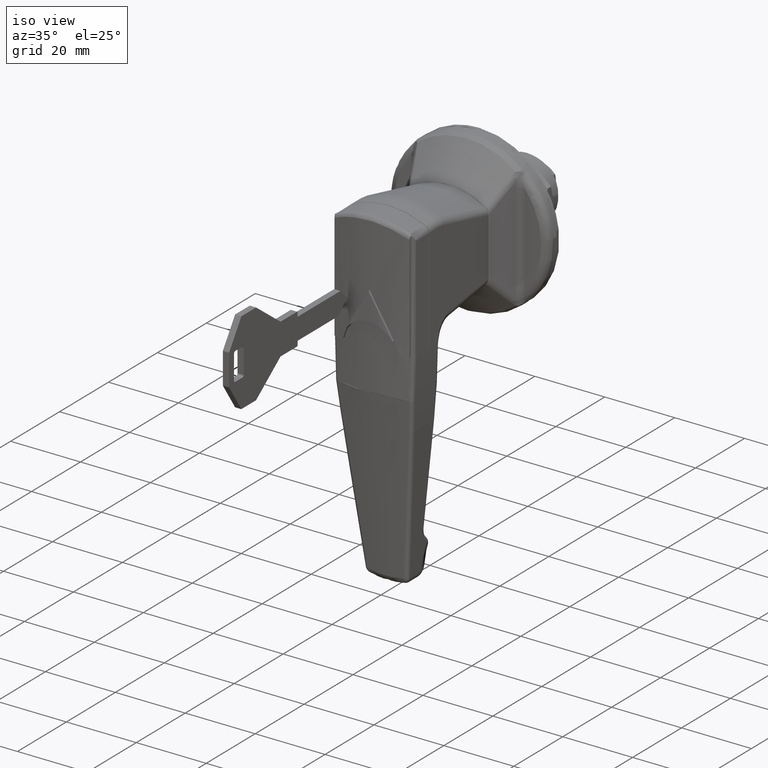
[diagram: clean part render]
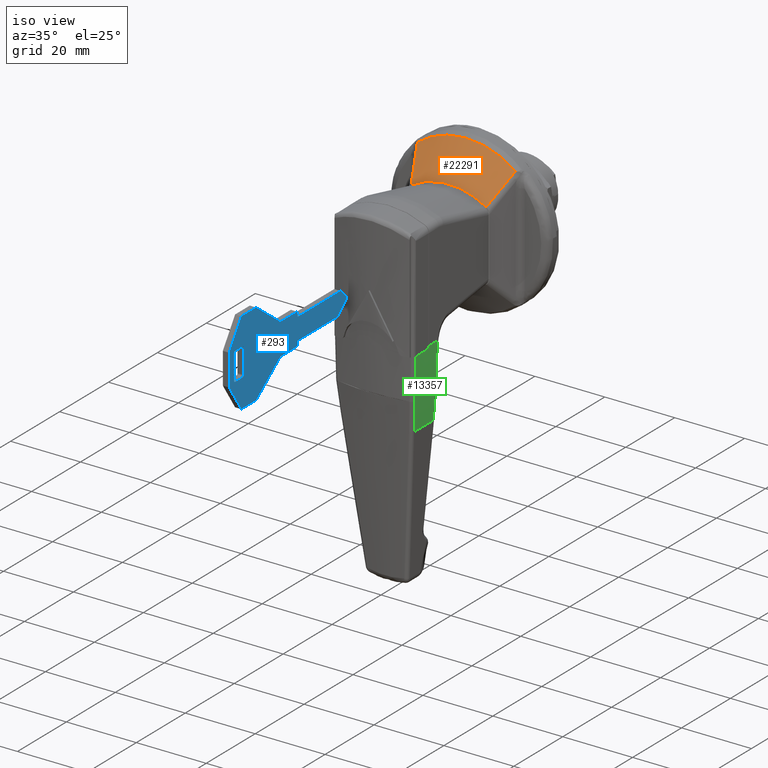
[diagram: same view with three faces highlighted in distinct colors, each labeled with its STEP entity id]
A machine part, iso view with three faces highlighted in distinct colors.
Their STEP definitions:

[orange] entity #22291 — the highlighted face is a freeform B-spline surface patch.
#18486=CARTESIAN_POINT('',(-12.321433036247999,10.742000831447980,10.038640938515201));
#18487=VERTEX_POINT('',#18486);
#18748=CARTESIAN_POINT('',(-12.321433036248020,-10.742000831447980,10.038640938515160));
#18749=VERTEX_POINT('',#18748);
#18763=CARTESIAN_POINT('',(-12.321433036247999,10.742000831447999,10.038640938515201));
#18764=CARTESIAN_POINT('',(-12.325116014844641,9.935737711563332,10.544611168174891));
#18765=CARTESIAN_POINT('',(-12.328138148213700,9.103042534133339,10.986867060443890));
#18766=CARTESIAN_POINT('',(-12.333186291889580,7.388131442044818,11.752007768801070));
#18767=CARTESIAN_POINT('',(-12.335207689114609,6.505903244868991,12.074863006352560));
#18768=CARTESIAN_POINT('',(-12.337181424192149,5.371807727873878,12.402957292845640));
#18769=CARTESIAN_POINT('',(-12.337548714730630,5.143413710822889,12.464779750336850));
#18770=CARTESIAN_POINT('',(-12.338231097689251,4.683428351248114,12.580717345870539));
#18771=CARTESIAN_POINT('',(-12.338546632021320,4.451429704269319,12.634910192029890));
#18772=CARTESIAN_POINT('',(-12.339412137278551,3.755455877847617,12.784697056970529));
#18773=CARTESIAN_POINT('',(-12.339883325638439,3.290490825030909,12.867836478127710));
#18774=CARTESIAN_POINT('',(-12.341009530580170,1.892695517705400,13.067904966317080));
#18775=CARTESIAN_POINT('',(-12.341382520495360,0.956982656407495,13.135782738804011));
#18776=CARTESIAN_POINT('',(-12.341389452105140,-0.452496984345249,13.137026997728700));
#18777=CARTESIAN_POINT('',(-12.341298207228110,-0.923313518672048,13.120595811653491));
#18778=CARTESIAN_POINT('',(-12.341020059827899,-1.631029268429679,13.070578587175330));
#18779=CARTESIAN_POINT('',(-12.340903712084121,-1.867183283699320,13.049673109790421));
#18780=CARTESIAN_POINT('',(-12.340692816374739,-2.221790779635927,13.011908714000350));
#18781=CARTESIAN_POINT('',(-12.340616438208270,-2.340048293248194,12.998250611748910));
#18782=CARTESIAN_POINT('',(-12.340452043915390,-2.575746027377839,12.968914207087460));
#18783=CARTESIAN_POINT('',(-12.340363961057900,-2.693304797770000,12.953223943369791));
#18784=CARTESIAN_POINT('',(-12.339517986569410,-3.748750219985067,12.802909412063780));
#18785=CARTESIAN_POINT('',(-12.338395261438340,-4.668669774468554,12.604983915555270));
#18786=CARTESIAN_POINT('',(-12.335273754785410,-6.473446323160069,12.085602395992771));
#18787=CARTESIAN_POINT('',(-12.333264567743960,-7.358304153809424,11.764149384066410));
#18788=CARTESIAN_POINT('',(-12.330087338123590,-8.441642299604650,11.282238012910099));
#18789=CARTESIAN_POINT('',(-12.329417418218990,-8.657403474254357,11.181706606538199));
#18790=CARTESIAN_POINT('',(-12.328010816086421,-9.085057266007770,10.973173764489070));
#18791=CARTESIAN_POINT('',(-12.327274091843030,-9.296999302346393,10.865162632863390));
#18792=CARTESIAN_POINT('',(-12.324957489378249,-9.927135884050864,10.529825710193760));
#18793=CARTESIAN_POINT('',(-12.323274405706840,-10.338895506288710,10.291609589713090));
#18794=CARTESIAN_POINT('',(-12.321433036248020,-10.742000831447980,10.038640938515160));
#18795=B_SPLINE_CURVE_WITH_KNOTS('',3,(#18763,#18764,#18765,#18766,#18767,#18768,#18769,#18770,#18771,#18772,#18773,#18774,#18775,#18776,#18777,#18778,#18779,#18780,#18781,#18782,#18783,#18784,#18785,#18786,#18787,#18788,#18789,#18790,#18791,#18792,#18793,#18794),.UNSPECIFIED.,.F.,.U.,(4,2,2,2,2,2,2,2,2,2,2,2,2,2,2,4),(0.0,0.125000000000000,0.250000000000001,0.281250000000001,0.312500000000001,0.375000000000001,0.500000000000001,0.562500000000001,0.593750000000001,0.609375000000001,0.625000000000001,0.750000000000001,0.875000000000000,0.906250000000000,0.937500000000000,1.0),.UNSPECIFIED.);
#18796=EDGE_CURVE('',#18487,#18749,#18795,.T.);
#19611=CARTESIAN_POINT('',(-5.095358656782400,14.036954959390640,17.403444857041901));
#19612=VERTEX_POINT('',#19611);
#21109=CARTESIAN_POINT('',(-6.079752064712659,-13.591354350000140,16.401682242647951));
#21110=VERTEX_POINT('',#21109);
#21111=CARTESIAN_POINT('',(-12.321433036248010,-10.742000831447969,10.038640938515160));
#21112=CARTESIAN_POINT('',(-10.244822988812780,-11.698844069176809,12.160359127217600));
#21113=CARTESIAN_POINT('',(-8.163295736603228,-12.647335930073950,14.281018012927531));
#21114=CARTESIAN_POINT('',(-6.079752064712669,-13.591354350000140,16.401682242647951));
#21115=QUASI_UNIFORM_CURVE('',3,(#21111,#21112,#21113,#21114),.UNSPECIFIED.,.F.,.U.);
#21116=EDGE_CURVE('',#18749,#21110,#21115,.T.);
#21206=CARTESIAN_POINT('',(-5.095301589092170,-14.070662366495499,17.377053767359001));
#21207=VERTEX_POINT('',#21206);
#21221=CARTESIAN_POINT('',(-6.079752064712659,-13.591354350000140,16.401682242647951));
#21222=CARTESIAN_POINT('',(-5.916437704936828,-13.665349325937910,16.567906222326791));
#21223=CARTESIAN_POINT('',(-5.752362846337359,-13.745715658241441,16.730231671533542));
#21224=CARTESIAN_POINT('',(-5.423726493405588,-13.909612060455119,17.052836709959301));
#21225=CARTESIAN_POINT('',(-5.259188811207092,-13.992913932852320,17.213252471662720));
#21226=CARTESIAN_POINT('',(-5.095301589092170,-14.070662366495499,17.377053767359001));
#21227=B_SPLINE_CURVE_WITH_KNOTS('',3,(#21221,#21222,#21223,#21224,#21225,#21226),.UNSPECIFIED.,.F.,.U.,(4,2,4),(0.0,0.500000000000000,1.0),.UNSPECIFIED.);
#21228=EDGE_CURVE('',#21110,#21207,#21227,.T.);
#21270=CARTESIAN_POINT('',(-5.095358656782400,14.036954959390640,17.403444857041901));
#21271=CARTESIAN_POINT('',(-6.301553571273096,13.491440960670790,16.176164072826900));
#21272=CARTESIAN_POINT('',(-7.507100569459020,12.944506718746039,14.948878084328751));
#21273=CARTESIAN_POINT('',(-9.916135587747155,11.846658723105749,12.494062737386900));
#21274=CARTESIAN_POINT('',(-11.119634789261740,11.295755508289430,11.266544657333620));
#21275=CARTESIAN_POINT('',(-12.321433036247990,10.742000831447990,10.038640938515179));
#21276=B_SPLINE_CURVE_WITH_KNOTS('',3,(#21270,#21271,#21272,#21273,#21274,#21275),.UNSPECIFIED.,.F.,.U.,(4,2,4),(0.0,0.500000000000000,1.0),.UNSPECIFIED.);
#21277=EDGE_CURVE('',#19612,#18487,#21276,.T.);
#22096=CARTESIAN_POINT('',(-5.095301589092178,-14.070662366495490,17.377053767359001));
#22097=CARTESIAN_POINT('',(-5.095515568449123,-13.945530649309440,17.475213801446561));
#22098=CARTESIAN_POINT('',(-5.095707532514079,-13.819312288860329,17.572118738290609));
#22099=CARTESIAN_POINT('',(-5.096058148112445,-13.565444764683409,17.762866637464072));
#22100=CARTESIAN_POINT('',(-5.096534080586068,-13.182278115644690,18.044570964644290));
#22101=CARTESIAN_POINT('',(-5.096908032889113,-12.792077674621931,18.313139006913978));
#22102=CARTESIAN_POINT('',(-5.097606535039664,-12.002418041209710,18.832983363947399));
#22103=CARTESIAN_POINT('',(-5.098017538741005,-11.463648290547219,19.156518643478101));
#22104=CARTESIAN_POINT('',(-5.098885899717735,-10.361710414943641,19.758022336688811));
#22105=CARTESIAN_POINT('',(-5.099341461181886,-9.798542244628546,20.035990668090669));
#22106=CARTESIAN_POINT('',(-5.100110596236076,-8.647587103989594,20.545949052675532));
#22107=CARTESIAN_POINT('',(-5.100411590408659,-8.059796934579811,20.777933148446600));
#22108=CARTESIAN_POINT('',(-5.100421260826939,-7.309236163519828,21.038362366977641));
#22109=CARTESIAN_POINT('',(-5.100408898920842,-7.158329171680895,21.088963705587830));
#22110=CARTESIAN_POINT('',(-5.100366125125066,-6.856315344009243,21.186739788496929));
#22111=CARTESIAN_POINT('',(-5.100274549465916,-6.402476215256112,21.328446918923110));
#22112=CARTESIAN_POINT('',(-5.100143509436993,-5.946202820196547,21.455409627637920));
#22113=CARTESIAN_POINT('',(-5.099908242405691,-5.030450112042230,21.689916698760040));
#22114=CARTESIAN_POINT('',(-5.099687193830082,-3.800907742325839,21.950873260817840));
#22115=CARTESIAN_POINT('',(-5.099959836505550,-2.554452836300698,22.109390024592731));
#22116=CARTESIAN_POINT('',(-5.100310848251478,-1.299457326211547,22.216176080430301));
#22117=CARTESIAN_POINT('',(-5.100526425508275,-0.667689854221087,22.243707298178592));
#22118=CARTESIAN_POINT('',(-5.100537598811961,0.286560910469562,22.245030438143910));
#22119=CARTESIAN_POINT('',(-5.100483964824134,0.603788580125914,22.238791846162879));
#22120=CARTESIAN_POINT('',(-5.100335860699150,1.235712959079505,22.213201150732260));
#22121=CARTESIAN_POINT('',(-5.100241425105533,1.550550779737569,22.193849154276631));
#22122=CARTESIAN_POINT('',(-5.099975994475185,2.491736510859268,22.116387814986169));
#22123=CARTESIAN_POINT('',(-5.099689400959529,3.737787655331285,21.961421320831139));
#22124=CARTESIAN_POINT('',(-5.099894424604695,4.966326095427875,21.704331099431379));
#22125=CARTESIAN_POINT('',(-5.100202731698626,6.186042388508917,21.395795351161649));
#22126=CARTESIAN_POINT('',(-5.100410456967088,6.791490005624771,21.215807886183761));
#22127=CARTESIAN_POINT('',(-5.100421458553435,7.542633622596903,20.957783391078522));
#22128=CARTESIAN_POINT('',(-5.100410181481427,7.692641242216374,20.904496781643800));
#22129=CARTESIAN_POINT('',(-5.100349148883845,7.990817352606002,20.795061399434449));
#22130=CARTESIAN_POINT('',(-5.100207557371832,8.435781399365764,20.626452465589299));
#22131=CARTESIAN_POINT('',(-5.099955692049079,8.873898102961570,20.444578597191061));
#22132=CARTESIAN_POINT('',(-5.099386161963365,9.741096961720837,20.063328681289889));
#22133=CARTESIAN_POINT('',(-5.098928739013429,10.307198209518630,19.785854373414171));
#22134=CARTESIAN_POINT('',(-5.098055604711629,11.415480086690200,19.184565249274641));
#22135=CARTESIAN_POINT('',(-5.097641816993209,11.957661010650700,18.860751001118871));
#22136=CARTESIAN_POINT('',(-5.097060918708800,12.620227597479531,18.426615254554790));
#22137=CARTESIAN_POINT('',(-5.096940619887650,12.751981746309649,18.338317404090130));
#22138=CARTESIAN_POINT('',(-5.096685522857953,13.013961613089441,18.158760754933660));
#22139=CARTESIAN_POINT('',(-5.096550633052079,13.144266387157220,18.067444127451211));
#22140=CARTESIAN_POINT('',(-5.096113086660544,13.532054976929460,17.789608562473578));
#22141=CARTESIAN_POINT('',(-5.095778423109118,13.786525869584320,17.599140442421710));
#22142=CARTESIAN_POINT('',(-5.095358656782399,14.036954959390650,17.403444857041901));
#22143=B_SPLINE_CURVE_WITH_KNOTS('',3,(#22096,#22097,#22098,#22099,#22100,#22101,#22102,#22103,#22104,#22105,#22106,#22107,#22108,#22109,#22110,#22111,#22112,#22113,#22114,#22115,#22116,#22117,#22118,#22119,#22120,#22121,#22122,#22123,#22124,#22125,#22126,#22127,#22128,#22129,#22130,#22131,#22132,#22133,#22134,#22135,#22136,#22137,#22138,#22139,#22140,#22141,#22142),.UNSPECIFIED.,.F.,.U.,(4,2,1,2,2,2,2,2,1,2,1,2,2,2,2,1,2,2,2,1,2,2,2,2,2,4),(0.0,0.015625000000000,0.031250000000000,0.062499999999999,0.124999999999999,0.187499999999999,0.249999999999998,0.265624999999999,0.281249999999999,0.312499999999999,0.374999999999999,0.437499999999999,0.499999999999999,0.531249999999999,0.562499999999999,0.625000000000000,0.687500000000000,0.750000000000000,0.765625000000000,0.781250000000000,0.812500000000000,0.875000000000000,0.937500000000000,0.953125000000000,0.968750000000000,1.0),.UNSPECIFIED.);
#22144=EDGE_CURVE('',#21207,#19612,#22143,.T.);
#22243=CARTESIAN_POINT('',(-12.385579689408599,11.070429869243901,9.741399855580164));
#22244=CARTESIAN_POINT('',(-12.385579689408599,9.516666098191264,10.771135426139830));
#22245=CARTESIAN_POINT('',(-12.385579689408599,7.818413124722134,11.577760614343131));
#22246=CARTESIAN_POINT('',(-12.385579689408599,4.091855862913440,12.758141969573391));
#22247=CARTESIAN_POINT('',(-12.385579689408599,2.047535113427871,13.081031837223520));
#22248=CARTESIAN_POINT('',(-12.385579689408599,-2.047535113427876,13.081031837223520));
#22249=CARTESIAN_POINT('',(-12.385579689408599,-4.091855862913438,12.758141969573391));
#22250=CARTESIAN_POINT('',(-12.385579689408599,-7.828838692956331,11.574458331432480));
#22251=CARTESIAN_POINT('',(-12.385579689408599,-9.536610182243219,10.761652826825211));
#22252=CARTESIAN_POINT('',(-12.385579689408599,-11.097789379967949,9.723234719092019));
#22253=CARTESIAN_POINT('',(-9.940993394670286,12.113000832774910,12.272875078849690));
#22254=CARTESIAN_POINT('',(-9.940993394670286,10.442742554464029,13.465279623486939));
#22255=CARTESIAN_POINT('',(-9.940993394670283,8.594668846407473,14.406445187430490));
#22256=CARTESIAN_POINT('',(-9.940993394670285,4.511667090370532,15.781681989187190));
#22257=CARTESIAN_POINT('',(-9.940993394670285,2.257053841689218,16.155983151359340));
#22258=CARTESIAN_POINT('',(-9.940993394670285,-2.257053841689218,16.155983151359340));
#22259=CARTESIAN_POINT('',(-9.940993394670285,-4.511667090370522,15.781681989187190));
#22260=CARTESIAN_POINT('',(-9.940993394670285,-8.606091618262914,14.402597768993710));
#22261=CARTESIAN_POINT('',(-9.940993394670285,-10.464445660808501,13.454215348650960));
#22262=CARTESIAN_POINT('',(-9.940993394670285,-12.142409312672431,12.251841105108459));
#22263=CARTESIAN_POINT('',(-7.496407099931979,13.155571796305921,14.804350302119200));
#22264=CARTESIAN_POINT('',(-7.496407099931979,11.368819010736800,16.159423820834050));
#22265=CARTESIAN_POINT('',(-7.496407099931978,9.370924568092807,17.235129760517850));
#22266=CARTESIAN_POINT('',(-7.496407099931978,4.931478317827620,18.805222008800950));
#22267=CARTESIAN_POINT('',(-7.496407099931978,2.466572569950565,19.230934465495160));
#22268=CARTESIAN_POINT('',(-7.496407099931978,-2.466572569950565,19.230934465495160));
#22269=CARTESIAN_POINT('',(-7.496407099931978,-4.931478317827609,18.805222008800950));
#22270=CARTESIAN_POINT('',(-7.496407099931978,-9.383344543569494,17.230737206554920));
#22271=CARTESIAN_POINT('',(-7.496407099931978,-11.392281139373781,16.146777870476718));
#22272=CARTESIAN_POINT('',(-7.496407099931978,-13.187029245376911,14.780447491124891));
#22273=CARTESIAN_POINT('',(-5.051820805193661,14.198142759836919,17.335825525388731));
#22274=CARTESIAN_POINT('',(-5.051820805193661,12.294895467009569,18.853568018181189));
#22275=CARTESIAN_POINT('',(-5.051820805193661,10.147180289778129,20.063814333605212));
#22276=CARTESIAN_POINT('',(-5.051820805193661,5.351289545284716,21.828762028414719));
#22277=CARTESIAN_POINT('',(-5.051820805193661,2.676091298211912,22.305885779630930));
#22278=CARTESIAN_POINT('',(-5.051820805193661,-2.676091298211912,22.305885779630930));
#22279=CARTESIAN_POINT('',(-5.051820805193661,-5.351289545284696,21.828762028414719));
#22280=CARTESIAN_POINT('',(-5.051820805193661,-10.160597468876080,20.058876644116150));
#22281=CARTESIAN_POINT('',(-5.051820805193661,-12.320116617939069,18.839340392302471));
#22282=CARTESIAN_POINT('',(-5.051820805193661,-14.231649178081410,17.309053877141341));
#22283=B_SPLINE_SURFACE_WITH_KNOTS('',3,3,((#22243,#22253,#22263,#22273),(#22244,#22254,#22264,#22274),(#22245,#22255,#22265,#22275),(#22246,#22256,#22266,#22276),(#22247,#22257,#22267,#22277),(#22248,#22258,#22268,#22278),(#22249,#22259,#22269,#22279),(#22250,#22260,#22270,#22280),(#22251,#22261,#22271,#22281),(#22252,#22262,#22272,#22282)),.UNSPECIFIED.,.F.,.F.,.U.,(4,2,2,2,4),(4,4),(0.0,7.303557860207189,15.331409323718290,23.359260787229388,30.705710422016001),(0.0,11.761391583826850),.UNSPECIFIED.);
#22284=ORIENTED_EDGE('',*,*,#21277,.T.);
#22285=ORIENTED_EDGE('',*,*,#18796,.T.);
#22286=ORIENTED_EDGE('',*,*,#21116,.T.);
#22287=ORIENTED_EDGE('',*,*,#21228,.T.);
#22288=ORIENTED_EDGE('',*,*,#22144,.T.);
#22289=EDGE_LOOP('',(#22284,#22285,#22286,#22287,#22288));
#22290=FACE_OUTER_BOUND('',#22289,.T.);
#22291=ADVANCED_FACE('',(#22290),#22283,.T.);

[blue] entity #293 — the highlighted face is a freeform B-spline surface patch.
#44=CARTESIAN_POINT('',(-103.733763654037300,-0.900000000000000,13.198799953483350));
#45=CARTESIAN_POINT('',(-50.938627942001659,-0.900000000000000,13.198799953483350));
#46=CARTESIAN_POINT('',(-103.733763654037300,-0.900000000000000,-13.198800597213509));
#47=CARTESIAN_POINT('',(-50.938627942001659,-0.900000000000000,-13.198800597213509));
#48=B_SPLINE_SURFACE_WITH_KNOTS('',1,1,((#44,#46),(#45,#47)),.UNSPECIFIED.,.F.,.F.,.U.,(2,2),(2,2),(0.0,52.795135712035659),(0.0,26.397600550696851),.UNSPECIFIED.);
#49=CARTESIAN_POINT('',(-101.336164999999990,-0.900000000000012,4.500000582522990));
#50=VERTEX_POINT('',#49);
#51=CARTESIAN_POINT('',(-96.336164569421712,-0.900000000000012,12.0));
#52=VERTEX_POINT('',#51);
#53=CARTESIAN_POINT('',(-101.336164999999990,-0.900000000000012,4.500000582522990));
#54=CARTESIAN_POINT('',(-96.336164569421712,-0.900000000000012,12.0));
#55=QUASI_UNIFORM_CURVE('',1,(#53,#54),.UNSPECIFIED.,.F.,.U.);
#56=EDGE_CURVE('',#50,#52,#55,.T.);
#57=ORIENTED_EDGE('',*,*,#56,.F.);
#58=CARTESIAN_POINT('',(-101.336164999999990,-0.900000000000012,-4.500000582522980));
#59=VERTEX_POINT('',#58);
#60=CARTESIAN_POINT('',(-101.336164999999990,-0.900000000000012,-4.500000582522980));
#61=CARTESIAN_POINT('',(-101.336164999999990,-0.900000000000012,4.500000582522990));
#62=QUASI_UNIFORM_CURVE('',1,(#60,#61),.UNSPECIFIED.,.F.,.U.);
#63=EDGE_CURVE('',#59,#50,#62,.T.);
#64=ORIENTED_EDGE('',*,*,#63,.F.);
#65=CARTESIAN_POINT('',(-96.336164569421712,-0.900000000000012,-12.0));
#66=VERTEX_POINT('',#65);
#67=CARTESIAN_POINT('',(-96.336164569421712,-0.900000000000012,-12.0));
#68=CARTESIAN_POINT('',(-101.336164999999990,-0.900000000000012,-4.500000582522980));
#69=QUASI_UNIFORM_CURVE('',1,(#67,#68),.UNSPECIFIED.,.F.,.U.);
#70=EDGE_CURVE('',#66,#59,#69,.T.);
#71=ORIENTED_EDGE('',*,*,#70,.F.);
#72=CARTESIAN_POINT('',(-90.336165352112701,-0.900000000000012,-12.0));
#73=VERTEX_POINT('',#72);
#74=CARTESIAN_POINT('',(-90.336165352112701,-0.900000000000012,-12.0));
#75=CARTESIAN_POINT('',(-96.336164569421712,-0.900000000000012,-12.0));
#76=QUASI_UNIFORM_CURVE('',1,(#74,#75),.UNSPECIFIED.,.F.,.U.);
#77=EDGE_CURVE('',#73,#66,#76,.T.);
#78=ORIENTED_EDGE('',*,*,#77,.F.);
#79=CARTESIAN_POINT('',(-80.336164999999909,-0.900000000000012,-4.500000000000000));
#80=VERTEX_POINT('',#79);
#81=CARTESIAN_POINT('',(-80.336164999999909,-0.900000000000012,-4.500000000000000));
#82=CARTESIAN_POINT('',(-90.336165352112701,-0.900000000000012,-12.0));
#83=QUASI_UNIFORM_CURVE('',1,(#81,#82),.UNSPECIFIED.,.F.,.U.);
#84=EDGE_CURVE('',#80,#73,#83,.T.);
#85=ORIENTED_EDGE('',*,*,#84,.F.);
#86=CARTESIAN_POINT('',(-73.636164999999892,-0.900000000000012,-4.500000000000000));
#87=VERTEX_POINT('',#86);
#88=CARTESIAN_POINT('',(-73.636164999999892,-0.900000000000012,-4.500000000000000));
#89=CARTESIAN_POINT('',(-80.336164999999909,-0.900000000000012,-4.500000000000000));
#90=QUASI_UNIFORM_CURVE('',1,(#88,#89),.UNSPECIFIED.,.F.,.U.);
#91=EDGE_CURVE('',#87,#80,#90,.T.);
#92=ORIENTED_EDGE('',*,*,#91,.F.);
#93=CARTESIAN_POINT('',(-73.336164999999895,-0.900000000000012,-4.200000000000045));
#94=VERTEX_POINT('',#93);
#95=CARTESIAN_POINT('',(-73.636164999999892,-0.900000000000012,-4.500000000000044));
#96=CARTESIAN_POINT('',(-73.336164999999895,-0.900000000000012,-4.500000000000044));
#97=CARTESIAN_POINT('',(-73.336164999999895,-0.900000000000012,-4.200000000000045));
#105=(BOUNDED_CURVE()B_SPLINE_CURVE(2,(#95,#96,#97),.UNSPECIFIED.,.F.,.U.)CURVE()GEOMETRIC_REPRESENTATION_ITEM()QUASI_UNIFORM_CURVE()RATIONAL_B_SPLINE_CURVE((1.0,0.707106781186547,1.0))REPRESENTATION_ITEM(''));
#106=EDGE_CURVE('',#87,#94,#105,.T.);
#107=ORIENTED_EDGE('',*,*,#106,.T.);
#108=CARTESIAN_POINT('',(-73.336164999999895,-0.900000000000012,-3.100000000000000));
#109=VERTEX_POINT('',#108);
#110=CARTESIAN_POINT('',(-73.336164999999895,-0.900000000000012,-3.100000000000000));
#111=CARTESIAN_POINT('',(-73.336164999999895,-0.900000000000012,-4.200000000000045));
#112=QUASI_UNIFORM_CURVE('',1,(#110,#111),.UNSPECIFIED.,.F.,.U.);
#113=EDGE_CURVE('',#109,#94,#112,.T.);
#114=ORIENTED_EDGE('',*,*,#113,.F.);
#115=CARTESIAN_POINT('',(-56.836164999999902,-0.900000000000012,-3.100000000000000));
#116=VERTEX_POINT('',#115);
#117=CARTESIAN_POINT('',(-56.836164999999902,-0.900000000000012,-3.100000000000000));
#118=CARTESIAN_POINT('',(-73.336164999999895,-0.900000000000012,-3.100000000000000));
#119=QUASI_UNIFORM_CURVE('',1,(#117,#118),.UNSPECIFIED.,.F.,.U.);
#120=EDGE_CURVE('',#116,#109,#119,.T.);
#121=ORIENTED_EDGE('',*,*,#120,.F.);
#122=CARTESIAN_POINT('',(-53.494070531371797,-0.900000000000012,0.035347597657623));
#123=VERTEX_POINT('',#122);
#124=CARTESIAN_POINT('',(-53.494070531371797,-0.900000000000012,0.035347597657623));
#125=CARTESIAN_POINT('',(-56.836164999999902,-0.900000000000012,-3.100000000000000));
#126=QUASI_UNIFORM_CURVE('',1,(#124,#125),.UNSPECIFIED.,.F.,.U.);
#127=EDGE_CURVE('',#123,#116,#126,.T.);
#128=ORIENTED_EDGE('',*,*,#127,.F.);
#129=CARTESIAN_POINT('',(-53.483146999999903,-0.900000000000012,0.754087999999854));
#130=VERTEX_POINT('',#129);
#131=CARTESIAN_POINT('',(-53.494070531371790,-0.900000000000012,0.035347597657615));
#132=CARTESIAN_POINT('',(-53.339444645979249,-0.900000000000012,0.180408098451601));
#133=CARTESIAN_POINT('',(-53.336222735864631,-0.900000000000012,0.392401807365908));
#134=CARTESIAN_POINT('',(-53.333000825750013,-0.900000000000012,0.604395516280215));
#135=CARTESIAN_POINT('',(-53.483146999999903,-0.900000000000012,0.754087999999854));
#143=(BOUNDED_CURVE()B_SPLINE_CURVE(2,(#131,#132,#133,#134,#135),.UNSPECIFIED.,.F.,.U.)B_SPLINE_CURVE_WITH_KNOTS((3,2,3),(0.0,0.500000000000000,1.0),.UNSPECIFIED.)CURVE()GEOMETRIC_REPRESENTATION_ITEM()RATIONAL_B_SPLINE_CURVE((1.0,0.920649968654274,1.0,0.920649968654274,1.0))REPRESENTATION_ITEM(''));
#144=EDGE_CURVE('',#123,#130,#143,.T.);
#145=ORIENTED_EDGE('',*,*,#144,.T.);
#146=CARTESIAN_POINT('',(-55.836164999999902,-0.900000000000012,3.099999999999850));
#147=VERTEX_POINT('',#146);
#148=CARTESIAN_POINT('',(-55.836164999999902,-0.900000000000012,3.099999999999850));
#149=CARTESIAN_POINT('',(-53.483146999999903,-0.900000000000012,0.754087999999854));
#150=QUASI_UNIFORM_CURVE('',1,(#148,#149),.UNSPECIFIED.,.F.,.U.);
#151=EDGE_CURVE('',#147,#130,#150,.T.);
#152=ORIENTED_EDGE('',*,*,#151,.F.);
#153=CARTESIAN_POINT('',(-73.336164999999895,-0.900000000000012,3.099999999999850));
#154=VERTEX_POINT('',#153);
#155=CARTESIAN_POINT('',(-73.336164999999895,-0.900000000000012,3.099999999999850));
#156=CARTESIAN_POINT('',(-55.836164999999902,-0.900000000000012,3.099999999999850));
#157=QUASI_UNIFORM_CURVE('',1,(#155,#156),.UNSPECIFIED.,.F.,.U.);
#158=EDGE_CURVE('',#154,#147,#157,.T.);
#159=ORIENTED_EDGE('',*,*,#158,.F.);
#160=CARTESIAN_POINT('',(-73.336164999999895,-0.900000000000012,4.199999999999760));
#161=VERTEX_POINT('',#160);
#162=CARTESIAN_POINT('',(-73.336164999999895,-0.900000000000012,4.199999999999760));
#163=CARTESIAN_POINT('',(-73.336164999999895,-0.900000000000012,3.099999999999850));
#164=QUASI_UNIFORM_CURVE('',1,(#162,#163),.UNSPECIFIED.,.F.,.U.);
#165=EDGE_CURVE('',#161,#154,#164,.T.);
#166=ORIENTED_EDGE('',*,*,#165,.F.);
#167=CARTESIAN_POINT('',(-73.636164999999892,-0.900000000000012,4.499999999999885));
#168=VERTEX_POINT('',#167);
#169=CARTESIAN_POINT('',(-73.336164999999895,-0.900000000000012,4.199999999999760));
#170=CARTESIAN_POINT('',(-73.336164999999895,-0.900000000000012,4.499999999999758));
#171=CARTESIAN_POINT('',(-73.636164999999892,-0.900000000000012,4.499999999999759));
#179=(BOUNDED_CURVE()B_SPLINE_CURVE(2,(#169,#170,#171),.UNSPECIFIED.,.F.,.U.)CURVE()GEOMETRIC_REPRESENTATION_ITEM()QUASI_UNIFORM_CURVE()RATIONAL_B_SPLINE_CURVE((1.0,0.707106781186547,1.0))REPRESENTATION_ITEM(''));
#180=EDGE_CURVE('',#161,#168,#179,.T.);
#181=ORIENTED_EDGE('',*,*,#180,.T.);
#182=CARTESIAN_POINT('',(-80.336164999999909,-0.900000000000012,4.499999999999885));
#183=VERTEX_POINT('',#182);
#184=CARTESIAN_POINT('',(-80.336164999999909,-0.900000000000012,4.499999999999885));
#185=CARTESIAN_POINT('',(-73.636164999999892,-0.900000000000012,4.499999999999885));
#186=QUASI_UNIFORM_CURVE('',1,(#184,#185),.UNSPECIFIED.,.F.,.U.);
#187=EDGE_CURVE('',#183,#168,#186,.T.);
#188=ORIENTED_EDGE('',*,*,#187,.F.);
#189=CARTESIAN_POINT('',(-90.336165352112786,-0.900000000000012,12.0));
#190=VERTEX_POINT('',#189);
#191=CARTESIAN_POINT('',(-90.336165352112786,-0.900000000000012,12.0));
#192=CARTESIAN_POINT('',(-80.336164999999909,-0.900000000000012,4.499999999999885));
#193=QUASI_UNIFORM_CURVE('',1,(#191,#192),.UNSPECIFIED.,.F.,.U.);
#194=EDGE_CURVE('',#190,#183,#193,.T.);
#195=ORIENTED_EDGE('',*,*,#194,.F.);
#196=CARTESIAN_POINT('',(-96.336164569421712,-0.900000000000012,12.0));
#197=CARTESIAN_POINT('',(-90.336165352112786,-0.900000000000012,12.0));
#198=QUASI_UNIFORM_CURVE('',1,(#196,#197),.UNSPECIFIED.,.F.,.U.);
#199=EDGE_CURVE('',#52,#190,#198,.T.);
#200=ORIENTED_EDGE('',*,*,#199,.F.);
#201=EDGE_LOOP('',(#57,#64,#71,#78,#85,#92,#107,#114,#121,#128,#145,#152,#159,#166,#181,#188,#195,#200));
#202=FACE_OUTER_BOUND('',#201,.T.);
#203=CARTESIAN_POINT('',(-98.836164999999895,-0.900000000000012,4.0));
#204=VERTEX_POINT('',#203);
#205=CARTESIAN_POINT('',(-95.836164999999909,-0.900000000000012,4.0));
#206=VERTEX_POINT('',#205);
#207=CARTESIAN_POINT('',(-98.836164999999895,-0.900000000000012,4.0));
#208=CARTESIAN_POINT('',(-95.836164999999909,-0.900000000000012,4.0));
#209=QUASI_UNIFORM_CURVE('',1,(#207,#208),.UNSPECIFIED.,.F.,.U.);
#210=EDGE_CURVE('',#204,#206,#209,.T.);
#211=ORIENTED_EDGE('',*,*,#210,.T.);
#212=CARTESIAN_POINT('',(-95.336164999999909,-0.900000000000012,3.500000000000000));
#213=VERTEX_POINT('',#212);
#214=CARTESIAN_POINT('',(-95.336164999999909,-0.900000000000012,3.500000000000000));
#215=CARTESIAN_POINT('',(-95.336164999999923,-0.900000000000012,4.000000000000000));
#216=CARTESIAN_POINT('',(-95.836164999999909,-0.900000000000012,4.0));
#224=(BOUNDED_CURVE()B_SPLINE_CURVE(2,(#214,#215,#216),.UNSPECIFIED.,.F.,.U.)CURVE()GEOMETRIC_REPRESENTATION_ITEM()QUASI_UNIFORM_CURVE()RATIONAL_B_SPLINE_CURVE((1.0,0.707106781186548,1.0))REPRESENTATION_ITEM(''));
#225=EDGE_CURVE('',#213,#206,#224,.T.);
#226=ORIENTED_EDGE('',*,*,#225,.F.);
#227=CARTESIAN_POINT('',(-95.336164999999909,-0.900000000000012,-3.500000000000000));
#228=VERTEX_POINT('',#227);
#229=CARTESIAN_POINT('',(-95.336164999999909,-0.900000000000012,3.500000000000000));
#230=CARTESIAN_POINT('',(-95.336164999999909,-0.900000000000012,-3.500000000000000));
#231=QUASI_UNIFORM_CURVE('',1,(#229,#230),.UNSPECIFIED.,.F.,.U.);
#232=EDGE_CURVE('',#213,#228,#231,.T.);
#233=ORIENTED_EDGE('',*,*,#232,.T.);
#234=CARTESIAN_POINT('',(-95.836164999999909,-0.900000000000012,-4.0));
#235=VERTEX_POINT('',#234);
#236=CARTESIAN_POINT('',(-95.836164999999909,-0.900000000000012,-4.0));
#237=CARTESIAN_POINT('',(-95.336164999999923,-0.900000000000012,-4.000000000000000));
#238=CARTESIAN_POINT('',(-95.336164999999909,-0.900000000000012,-3.500000000000000));
#246=(BOUNDED_CURVE()B_SPLINE_CURVE(2,(#236,#237,#238),.UNSPECIFIED.,.F.,.U.)CURVE()GEOMETRIC_REPRESENTATION_ITEM()QUASI_UNIFORM_CURVE()RATIONAL_B_SPLINE_CURVE((1.0,0.707106781186548,1.0))REPRESENTATION_ITEM(''));
#247=EDGE_CURVE('',#235,#228,#246,.T.);
#248=ORIENTED_EDGE('',*,*,#247,.F.);
#249=CARTESIAN_POINT('',(-98.836164999999895,-0.900000000000012,-4.000000000000116));
#250=VERTEX_POINT('',#249);
#251=CARTESIAN_POINT('',(-95.836164999999909,-0.900000000000012,-4.0));
#252=CARTESIAN_POINT('',(-98.836164999999895,-0.900000000000012,-4.000000000000116));
#253=QUASI_UNIFORM_CURVE('',1,(#251,#252),.UNSPECIFIED.,.F.,.U.);
#254=EDGE_CURVE('',#235,#250,#253,.T.);
#255=ORIENTED_EDGE('',*,*,#254,.T.);
#256=CARTESIAN_POINT('',(-99.336164999999895,-0.900000000000012,-3.500000000000000));
#257=VERTEX_POINT('',#256);
#258=CARTESIAN_POINT('',(-99.336164999999895,-0.900000000000012,-3.500000000000000));
#259=CARTESIAN_POINT('',(-99.336164999999895,-0.900000000000012,-4.000000000000000));
#260=CARTESIAN_POINT('',(-98.836164999999895,-0.900000000000012,-4.0));
#268=(BOUNDED_CURVE()B_SPLINE_CURVE(2,(#258,#259,#260),.UNSPECIFIED.,.F.,.U.)CURVE()GEOMETRIC_REPRESENTATION_ITEM()QUASI_UNIFORM_CURVE()RATIONAL_B_SPLINE_CURVE((1.0,0.707106781186548,1.0))REPRESENTATION_ITEM(''));
#269=EDGE_CURVE('',#257,#250,#268,.T.);
#270=ORIENTED_EDGE('',*,*,#269,.F.);
#271=CARTESIAN_POINT('',(-99.336164999999895,-0.900000000000012,3.500000000000000));
#272=VERTEX_POINT('',#271);
#273=CARTESIAN_POINT('',(-99.336164999999895,-0.900000000000012,-3.500000000000000));
#274=CARTESIAN_POINT('',(-99.336164999999895,-0.900000000000012,3.500000000000000));
#275=QUASI_UNIFORM_CURVE('',1,(#273,#274),.UNSPECIFIED.,.F.,.U.);
#276=EDGE_CURVE('',#257,#272,#275,.T.);
#277=ORIENTED_EDGE('',*,*,#276,.T.);
#278=CARTESIAN_POINT('',(-98.836164999999895,-0.900000000000012,4.0));
#279=CARTESIAN_POINT('',(-99.336164999999895,-0.900000000000012,4.000000000000000));
#280=CARTESIAN_POINT('',(-99.336164999999895,-0.900000000000012,3.500000000000000));
#288=(BOUNDED_CURVE()B_SPLINE_CURVE(2,(#278,#279,#280),.UNSPECIFIED.,.F.,.U.)CURVE()GEOMETRIC_REPRESENTATION_ITEM()QUASI_UNIFORM_CURVE()RATIONAL_B_SPLINE_CURVE((1.0,0.707106781186548,1.0))REPRESENTATION_ITEM(''));
#289=EDGE_CURVE('',#204,#272,#288,.T.);
#290=ORIENTED_EDGE('',*,*,#289,.F.);
#291=EDGE_LOOP('',(#211,#226,#233,#248,#255,#270,#277,#290));
#292=FACE_BOUND('',#291,.T.);
#293=ADVANCED_FACE('',(#202,#292),#48,.F.);

[green] entity #13357 — the highlighted face is a freeform B-spline surface patch.
#7258=CARTESIAN_POINT('',(-33.330451468540403,-11.500000000000000,-16.269321783101098));
#7259=VERTEX_POINT('',#7258);
#7353=CARTESIAN_POINT('',(-33.500000000000000,-11.493947955351921,-17.825207778918749));
#7354=VERTEX_POINT('',#7353);
#7379=CARTESIAN_POINT('',(-33.500000000000000,-11.493947955351921,-17.825207778918749));
#7380=CARTESIAN_POINT('',(-33.500000000000007,-11.495989259155040,-17.562818113056370));
#7381=CARTESIAN_POINT('',(-33.471380503636198,-11.499015039821611,-17.041153403886771));
#7382=CARTESIAN_POINT('',(-33.386903754290159,-11.500000000000000,-16.525567651724909));
#7383=CARTESIAN_POINT('',(-33.330451468540403,-11.500000000000000,-16.269321783101098));
#7384=B_SPLINE_CURVE_WITH_KNOTS('',3,(#7379,#7380,#7381,#7382,#7383),.UNSPECIFIED.,.F.,.U.,(4,1,4),(0.0,0.500000000000000,1.0),.UNSPECIFIED.);
#7385=EDGE_CURVE('',#7354,#7259,#7384,.T.);
#7407=CARTESIAN_POINT('',(-33.500000000000000,-10.414127563133260,-37.082054803959750));
#7408=VERTEX_POINT('',#7407);
#7440=CARTESIAN_POINT('',(-33.500000000000000,-10.414127563133290,-37.082054803959849));
#7441=CARTESIAN_POINT('',(-33.500000000000000,-11.418839276313740,-27.479694860195792));
#7442=CARTESIAN_POINT('',(-33.500000000000000,-11.493947955351940,-17.825207778918820));
#7450=(BOUNDED_CURVE()B_SPLINE_CURVE(2,(#7440,#7441,#7442),.UNSPECIFIED.,.F.,.U.)CURVE()GEOMETRIC_REPRESENTATION_ITEM()QUASI_UNIFORM_CURVE()RATIONAL_B_SPLINE_CURVE((1.0,0.998836848009269,1.0))REPRESENTATION_ITEM(''));
#7451=EDGE_CURVE('',#7408,#7354,#7450,.T.);
#9400=CARTESIAN_POINT('',(-42.116530728847152,-11.114617704381320,-28.679172657857048));
#9401=VERTEX_POINT('',#9400);
#9654=CARTESIAN_POINT('',(-41.257534945699298,-10.414127563133260,-37.082054803959750));
#9655=VERTEX_POINT('',#9654);
#9669=CARTESIAN_POINT('',(-42.116530728847202,-11.114617704381320,-28.679172657857048));
#9670=CARTESIAN_POINT('',(-41.820871590158333,-10.940237541178600,-31.484108024465410));
#9671=CARTESIAN_POINT('',(-41.535252136037791,-10.706773203194420,-34.285144272335678));
#9672=CARTESIAN_POINT('',(-41.257534945699298,-10.414127563133260,-37.082054803959750));
#9673=QUASI_UNIFORM_CURVE('',3,(#9669,#9670,#9671,#9672),.UNSPECIFIED.,.F.,.U.);
#9674=EDGE_CURVE('',#9401,#9655,#9673,.T.);
#9727=CARTESIAN_POINT('',(-42.048727962254553,-11.498665268904601,-17.0));
#9728=VERTEX_POINT('',#9727);
#9764=CARTESIAN_POINT('',(-42.048727962254553,-11.498665268904601,-17.0));
#9765=CARTESIAN_POINT('',(-42.050008483444088,-11.491548311091830,-18.948028599196309));
#9766=CARTESIAN_POINT('',(-42.056428566853377,-11.455977651039650,-20.895522772792209));
#9767=CARTESIAN_POINT('',(-42.079226717606453,-11.327932060099020,-24.789433435217990));
#9768=CARTESIAN_POINT('',(-42.095599581770330,-11.235485250468360,-26.734997079235882));
#9769=CARTESIAN_POINT('',(-42.116530728847202,-11.114617704381320,-28.679172657856999));
#9770=B_SPLINE_CURVE_WITH_KNOTS('',3,(#9764,#9765,#9766,#9767,#9768,#9769),.UNSPECIFIED.,.F.,.U.,(4,2,4),(0.0,0.500000000000000,1.0),.UNSPECIFIED.);
#9771=EDGE_CURVE('',#9728,#9401,#9770,.T.);
#12581=CARTESIAN_POINT('',(-36.799999999999997,-11.500000000000000,-16.269321783101098));
#12582=VERTEX_POINT('',#12581);
#12659=CARTESIAN_POINT('',(-36.799999999999997,-11.498665268904601,-17.0));
#12660=VERTEX_POINT('',#12659);
#12666=CARTESIAN_POINT('',(-36.799999999999997,-11.500000000000011,-16.269321783101049));
#12667=CARTESIAN_POINT('',(-36.799999999999997,-11.500000000000012,-16.634662110627168));
#12668=CARTESIAN_POINT('',(-36.799999999999997,-11.498665268904610,-16.999999999999972));
#12676=(BOUNDED_CURVE()B_SPLINE_CURVE(2,(#12666,#12667,#12668),.UNSPECIFIED.,.F.,.U.)CURVE()GEOMETRIC_REPRESENTATION_ITEM()QUASI_UNIFORM_CURVE()RATIONAL_B_SPLINE_CURVE((1.0,0.999998331584739,1.0))REPRESENTATION_ITEM(''));
#12677=EDGE_CURVE('',#12582,#12660,#12676,.T.);
#12701=CARTESIAN_POINT('',(-42.048727962254553,-11.498665268904601,-17.0));
#12702=CARTESIAN_POINT('',(-36.799999999999997,-11.498665268904601,-17.0));
#12703=QUASI_UNIFORM_CURVE('',1,(#12701,#12702),.UNSPECIFIED.,.F.,.U.);
#12704=EDGE_CURVE('',#9728,#12660,#12703,.T.);
#13325=CARTESIAN_POINT('',(-33.110799487032736,-11.497293751227351,-15.228892936301458));
#13326=CARTESIAN_POINT('',(-42.341673548617202,-11.497293751227351,-15.228892936301458));
#13327=CARTESIAN_POINT('',(-33.110799487032736,-11.557007898925113,-26.707494260117333));
#13328=CARTESIAN_POINT('',(-42.341673548617194,-11.557007898925113,-26.707494260117333));
#13329=CARTESIAN_POINT('',(-33.110799487032736,-10.303055211442135,-38.117553716057834));
#13330=CARTESIAN_POINT('',(-42.341673548617209,-10.303055211442135,-38.117553716057834));
#13338=(BOUNDED_SURFACE()B_SPLINE_SURFACE(1,2,((#13325,#13327,#13329),(#13326,#13328,#13330)),.UNSPECIFIED.,.F.,.F.,.U.)B_SPLINE_SURFACE_WITH_KNOTS((2,2),(3,3),(0.0,9.230874061584473),(0.705935721510649,23.646369333153960),.UNSPECIFIED.)GEOMETRIC_REPRESENTATION_ITEM()RATIONAL_B_SPLINE_SURFACE(((0.999864642161164,0.997715844505682,0.998851124018511),(0.999864642161164,0.997715844505682,0.998851124018511)))REPRESENTATION_ITEM('')SURFACE());
#13339=ORIENTED_EDGE('',*,*,#7451,.T.);
#13340=ORIENTED_EDGE('',*,*,#7385,.T.);
#13341=CARTESIAN_POINT('',(-33.330451468540403,-11.500000000000000,-16.269321783101098));
#13342=CARTESIAN_POINT('',(-36.799999999999997,-11.500000000000000,-16.269321783101098));
#13343=QUASI_UNIFORM_CURVE('',1,(#13341,#13342),.UNSPECIFIED.,.F.,.U.);
#13344=EDGE_CURVE('',#7259,#12582,#13343,.T.);
#13345=ORIENTED_EDGE('',*,*,#13344,.T.);
#13346=ORIENTED_EDGE('',*,*,#12677,.T.);
#13347=ORIENTED_EDGE('',*,*,#12704,.F.);
#13348=ORIENTED_EDGE('',*,*,#9771,.T.);
#13349=ORIENTED_EDGE('',*,*,#9674,.T.);
#13350=CARTESIAN_POINT('',(-33.500000000000000,-10.414127563133260,-37.082054803959750));
#13351=CARTESIAN_POINT('',(-41.257534945699298,-10.414127563133260,-37.082054803959750));
#13352=QUASI_UNIFORM_CURVE('',1,(#13350,#13351),.UNSPECIFIED.,.F.,.U.);
#13353=EDGE_CURVE('',#7408,#9655,#13352,.T.);
#13354=ORIENTED_EDGE('',*,*,#13353,.F.);
#13355=EDGE_LOOP('',(#13339,#13340,#13345,#13346,#13347,#13348,#13349,#13354));
#13356=FACE_OUTER_BOUND('',#13355,.T.);
#13357=ADVANCED_FACE('',(#13356),#13338,.T.);